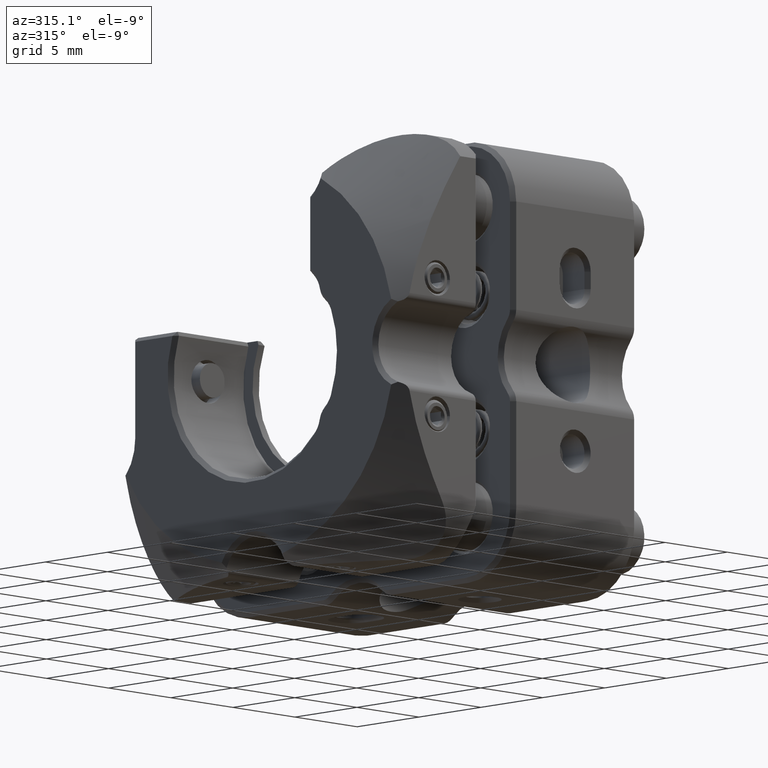
[diagram: clean part render]
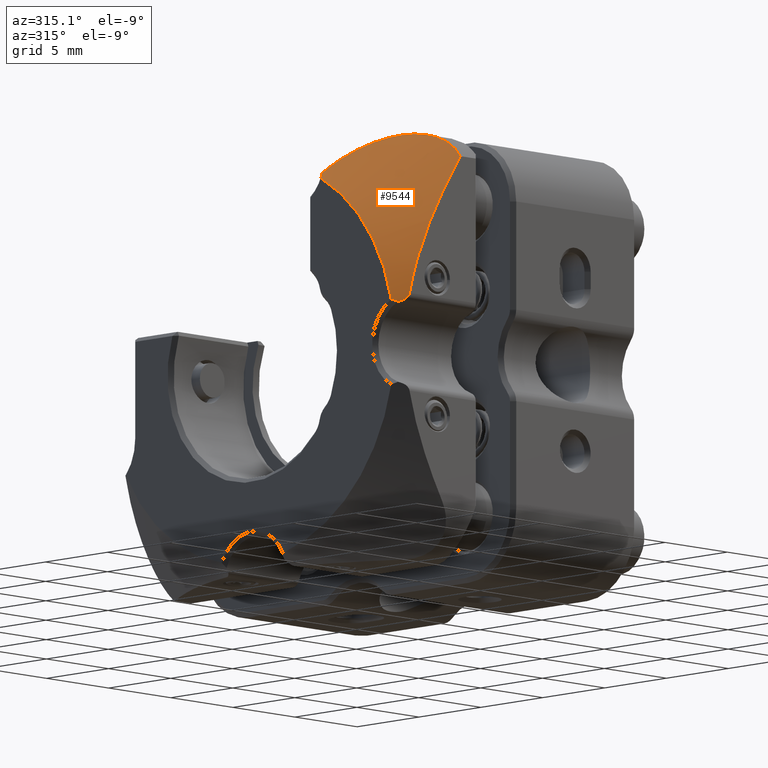
[diagram: same view with one face highlighted and labeled with its STEP entity id]
A machine part, auxiliary view. The second image highlights one B-rep face of the part: STEP entity #9544.
In plain terms, the highlighted conical surface has half-angle 45 deg.
Its self-contained STEP definition (entity closure, byte-faithful):
#365 = CARTESIAN_POINT ( 'NONE',  ( -8.402670645154575624, -3.469446951953614189E-15, -1.582072770256425168E-13 ) ) ;
#748 = ORIENTED_EDGE ( 'NONE', *, *, #24608, .T. ) ;
#2525 = CARTESIAN_POINT ( 'NONE',  ( -10.91503277499793079, -6.870144835519499615, 12.12389229928446355 ) ) ;
#2766 = CARTESIAN_POINT ( 'NONE',  ( -10.15724776907853766, -7.691349513042704977, 12.52078942497383807 ) ) ;
#2949 = CARTESIAN_POINT ( 'NONE',  ( -8.497418458155918231, -11.94000005421195887, 11.17333082782726805 ) ) ;
#3234 = CARTESIAN_POINT ( 'NONE',  ( -9.811147995964111246, -8.160223810957242918, 12.63290668111049264 ) ) ;
#3374 = CARTESIAN_POINT ( 'NONE',  ( -13.06886109312808664, -11.54734181344223032, 2.335414869067829802 ) ) ;
#3420 = CARTESIAN_POINT ( 'NONE',  ( -12.16517816744343605, -11.94000000000000306, 4.333953607213652859 ) ) ;
#3986 = EDGE_CURVE ( 'NONE', #4515, #46794, #41788, .T. ) ;
#4515 = VERTEX_POINT ( 'NONE', #36885 ) ;
#5659 = ORIENTED_EDGE ( 'NONE', *, *, #25462, .T. ) ;
#6339 = CARTESIAN_POINT ( 'NONE',  ( -12.40311577417772781, -11.94000000000000483, 3.593904326202175259 ) ) ;
#6681 = VERTEX_POINT ( 'NONE', #11978 ) ;
#7064 = B_SPLINE_CURVE_WITH_KNOTS ( 'NONE', 3,
 ( #29952, #3374, #44236, #11107 ),
 .UNSPECIFIED., .F., .F.,
 ( 4, 4 ),
 ( 2.733995490866616695E-11, 0.0001331835550975556646 ),
 .UNSPECIFIED. ) ;
#9261 = CARTESIAN_POINT ( 'NONE',  ( -13.35000000000252385, -11.23155546623884860, 2.470255413676783807 ) ) ;
#9532 = CARTESIAN_POINT ( 'NONE',  ( -11.17908811059965402, -6.626073529886143731, 11.95798162099575457 ) ) ;
#9544 = ADVANCED_FACE ( 'NONE', ( #14864 ), #40288, .T. ) ;
#9772 = CARTESIAN_POINT ( 'NONE',  ( -13.10767460866675904, -5.403075257491882333, 10.42540087276390359 ) ) ;
#10483 = CARTESIAN_POINT ( 'NONE',  ( -8.483879293265577104, -11.25296339506441790, 11.88524538833256905 ) ) ;
#11099 = B_SPLINE_CURVE_WITH_KNOTS ( 'NONE', 3,
 ( #27473, #34982, #13691, #20692, #24318, #45878 ),
 .UNSPECIFIED., .F., .F.,
 ( 4, 2, 4 ),
 ( 4.336808689942017255E-19, 0.0003769804638441096728, 0.0007539609276882189119 ),
 .UNSPECIFIED. ) ;
#11107 = CARTESIAN_POINT ( 'NONE',  ( -13.00642508924494400, -11.60666666666666735, 2.357022603954997741 ) ) ;
#11247 = DIRECTION ( 'NONE',  ( 1.000000000000000000, -0.000000000000000000, 0.000000000000000000 ) ) ;
#11373 = AXIS2_PLACEMENT_3D ( 'NONE', #32801, #47569, #29172 ) ;
#11486 = DIRECTION ( 'NONE',  ( 0.000000000000000000, 1.000000000000000000, 3.608224830031763687E-16 ) ) ;
#11564 = ORIENTED_EDGE ( 'NONE', *, *, #16381, .T. ) ;
#11978 = CARTESIAN_POINT ( 'NONE',  ( -13.34999999999884146, -5.530812164175499035, 10.08266417196445452 ) ) ;
#13392 = CARTESIAN_POINT ( 'NONE',  ( -9.098901345686694953, -9.350521429901458959, 12.67638053571431378 ) ) ;
#13549 = CARTESIAN_POINT ( 'NONE',  ( -13.00642508924494400, -11.60666666666666735, 2.357022603954997741 ) ) ;
#13691 = CARTESIAN_POINT ( 'NONE',  ( -12.67592466952843822, -11.89410921640054752, 2.596599992702082638 ) ) ;
#13871 = CARTESIAN_POINT ( 'NONE',  ( -8.932866779902733256, -9.706835081813490973, 12.61579360643520786 ) ) ;
#14527 = CARTESIAN_POINT ( 'NONE',  ( -12.57956398492702377, -11.94000000000000483, 2.828427124746028642 ) ) ;
#14864 = FACE_OUTER_BOUND ( 'NONE', #44487, .T. ) ;
#15442 = EDGE_CURVE ( 'NONE', #30161, #25270, #11099, .T. ) ;
#16381 = EDGE_CURVE ( 'NONE', #19575, #25270, #7064, .T. ) ;
#17021 = CARTESIAN_POINT ( 'NONE',  ( -8.497418458155918231, -11.94000005421195887, 11.17333082782726805 ) ) ;
#17496 = CARTESIAN_POINT ( 'NONE',  ( -12.82657743614821833, -5.516583065916431217, 10.68317928031761532 ) ) ;
#17732 = CARTESIAN_POINT ( 'NONE',  ( -12.54429180755184703, -5.658420303444831490, 10.92769976922322606 ) ) ;
#17918 = CARTESIAN_POINT ( 'NONE',  ( -10.17748806988893939, -11.94000000000000483, 8.543824536358668453 ) ) ;
#17967 = CARTESIAN_POINT ( 'NONE',  ( -8.724587789762393797, -10.24066170067738568, 12.45745877439278715 ) ) ;
#18108 = EDGE_CURVE ( 'NONE', #43762, #19575, #21492, .T. ) ;
#19575 = VERTEX_POINT ( 'NONE', #33640 ) ;
#19766 = CARTESIAN_POINT ( 'NONE',  ( -12.57956398492702377, -11.94000000000000483, 2.828427124746028642 ) ) ;
#20692 = CARTESIAN_POINT ( 'NONE',  ( -12.82959415644613443, -11.77032013285957923, 2.440036072584337301 ) ) ;
#21109 = CARTESIAN_POINT ( 'NONE',  ( -10.78367658467635337, -6.999581974744052637, 12.20138785542683024 ) ) ;
#21492 = B_SPLINE_CURVE_WITH_KNOTS ( 'NONE', 3,
 ( #9261, #34411, #23989, #27374 ),
 .UNSPECIFIED., .F., .F.,
 ( 4, 4 ),
 ( 0.000000000000000000, 1.000000000000000000 ),
 .UNSPECIFIED. ) ;
#21650 = CARTESIAN_POINT ( 'NONE',  ( -13.10767460866675904, -5.403075257491882333, 10.42540087276390359 ) ) ;
#21772 = CARTESIAN_POINT ( 'NONE',  ( -9.364215368868137546, -11.94000000000000483, 9.875416801868796668 ) ) ;
#21898 = B_SPLINE_CURVE_WITH_KNOTS ( 'NONE', 3,
 ( #14527, #6339, #3420, #35592, #47673, #46965, #17918, #21772, #25159, #2949 ),
 .UNSPECIFIED., .F., .F.,
 ( 4, 2, 2, 2, 4 ),
 ( 8.673617379884035472E-19, 0.002324423507068058489, 0.004648847014136116111, 0.006973270521204173733, 0.009297694028272230488 ),
 .UNSPECIFIED. ) ;
#23989 = CARTESIAN_POINT ( 'NONE',  ( -13.17881387847055130, -11.42764889323108335, 2.372712200294239349 ) ) ;
#24318 = CARTESIAN_POINT ( 'NONE',  ( -12.91706009393647925, -11.69174713421772260, 2.387103091730931492 ) ) ;
#24608 = EDGE_CURVE ( 'NONE', #46794, #6681, #35802, .T. ) ;
#24977 = CARTESIAN_POINT ( 'NONE',  ( -9.382183031916341065, -8.825969060422741208, 12.70340233173187627 ) ) ;
#25159 = CARTESIAN_POINT ( 'NONE',  ( -8.937823242454433270, -11.94000000000000483, 10.52878224852238631 ) ) ;
#25211 = CARTESIAN_POINT ( 'NONE',  ( -9.698300205051905820, -8.323489334354158942, 12.66135999479621610 ) ) ;
#25270 = VERTEX_POINT ( 'NONE', #13549 ) ;
#25462 = EDGE_CURVE ( 'NONE', #30161, #4515, #21898, .T. ) ;
#26904 = CARTESIAN_POINT ( 'NONE',  ( -13.26486252557321421, -5.490619848766033151, 10.20181691594882878 ) ) ;
#27374 = CARTESIAN_POINT ( 'NONE',  ( -13.09999994418219948, -11.51793025671818071, 2.323744260563292752 ) ) ;
#27473 = CARTESIAN_POINT ( 'NONE',  ( -12.57956398492702377, -11.94000000000000483, 2.828427124746028642 ) ) ;
#27893 = CARTESIAN_POINT ( 'NONE',  ( -11.31221132091368098, -6.510924265241684772, 11.86937918357350519 ) ) ;
#28130 = CARTESIAN_POINT ( 'NONE',  ( -9.189949781666786777, -9.172452105601760053, 12.69346659153493739 ) ) ;
#28374 = CARTESIAN_POINT ( 'NONE',  ( -8.666231931144158906, -10.41944353600201545, 12.38484321579276859 ) ) ;
#28614 = CARTESIAN_POINT ( 'NONE',  ( -10.40053484018271313, -7.402192709007719529, 12.41051257944025288 ) ) ;
#29172 = DIRECTION ( 'NONE',  ( 0.000000000000000000, 1.000000000000000000, 2.137179322403425946E-15 ) ) ;
#29952 = CARTESIAN_POINT ( 'NONE',  ( -13.09999994418219948, -11.51793025671818071, 2.323744260563292752 ) ) ;
#30074 = CARTESIAN_POINT ( 'NONE',  ( -13.18408738774756017, -5.447917549335694609, 10.31609572402985719 ) ) ;
#30161 = VERTEX_POINT ( 'NONE', #19766 ) ;
#31145 = CARTESIAN_POINT ( 'NONE',  ( -13.35000000000252385, -11.23155546623884860, 2.470255413676783807 ) ) ;
#31770 = CARTESIAN_POINT ( 'NONE',  ( -8.535058140494925283, -10.93066528367338641, 12.11347268372977481 ) ) ;
#32007 = CARTESIAN_POINT ( 'NONE',  ( -8.857807958358876022, -9.884922426136672158, 12.57255054312077291 ) ) ;
#32801 = CARTESIAN_POINT ( 'NONE',  ( -13.35000000000000142, -3.469446951953614189E-15, -1.582072770256425168E-13 ) ) ;
#33315 = ORIENTED_EDGE ( 'NONE', *, *, #44334, .F. ) ;
#33640 = CARTESIAN_POINT ( 'NONE',  ( -13.09999994418219948, -11.51793025671818071, 2.323744260563292752 ) ) ;
#34411 = CARTESIAN_POINT ( 'NONE',  ( -13.26214721180387812, -11.33219069387417832, 2.421684291790446864 ) ) ;
#34982 = CARTESIAN_POINT ( 'NONE',  ( -12.60831109489934221, -11.94000000000000306, 2.703714852526797774 ) ) ;
#35592 = CARTESIAN_POINT ( 'NONE',  ( -11.60210400606979420, -11.94000000000000128, 5.777992489763902562 ) ) ;
#35802 = B_SPLINE_CURVE_WITH_KNOTS ( 'NONE', 3,
 ( #42574, #30074, #26904, #46217 ),
 .UNSPECIFIED., .F., .F.,
 ( 4, 4 ),
 ( 0.000000000000000000, 1.000000000000000000 ),
 .UNSPECIFIED. ) ;
#35880 = CARTESIAN_POINT ( 'NONE',  ( -8.571776447358177009, -10.76377513963147692, 12.21296454373051787 ) ) ;
#36115 = CARTESIAN_POINT ( 'NONE',  ( -9.483958385201407992, -8.656246436083490536, 12.69650099382571540 ) ) ;
#36885 = CARTESIAN_POINT ( 'NONE',  ( -8.497418458155918231, -11.94000005421195887, 11.17333082782726805 ) ) ;
#40288 = CONICAL_SURFACE ( 'NONE', #44965, 16.44732935484544001, 0.7853981633974501664 ) ;
#41541 = ORIENTED_EDGE ( 'NONE', *, *, #15442, .F. ) ;
#41614 = ORIENTED_EDGE ( 'NONE', *, *, #18108, .T. ) ;
#41788 = B_SPLINE_CURVE_WITH_KNOTS ( 'NONE', 3,
 ( #17021, #43384, #43617, #46535, #10483, #31770, #35880, #28374, #17967, #32007, #13871, #13392, #28130, #24977, #36115, #25211, #3234, #2766, #28614, #21109, #2525, #9532, #27893, #46298, #42894, #17732, #17496, #9772 ),
 .UNSPECIFIED., .F., .F.,
 ( 4, 2, 2, 2, 2, 2, 2, 2, 2, 2, 2, 2, 2, 4 ),
 ( 8.964682040491793298E-11, 0.0005924033297749685357, 0.001184806569903116506, 0.001777209810031264801, 0.002369613050159412662, 0.002962016290287560957, 0.003554419530415709252, 0.004146822770543857548, 0.004739226010672004975, 0.005924032490928305035, 0.006516435731056454198, 0.007108838971184605095, 0.008293645451440911226, 0.009478451931697216490 ),
 .UNSPECIFIED. ) ;
#42574 = CARTESIAN_POINT ( 'NONE',  ( -13.10767460866675904, -5.403075257491882333, 10.42540087276390359 ) ) ;
#42806 = ORIENTED_EDGE ( 'NONE', *, *, #3986, .T. ) ;
#42894 = CARTESIAN_POINT ( 'NONE',  ( -11.98809318962949710, -5.992951098015496747, 11.38046890046638460 ) ) ;
#43021 = CIRCLE ( 'NONE', #11373, 11.49999999999999645 ) ;
#43384 = CARTESIAN_POINT ( 'NONE',  ( -8.475620748330873866, -11.82058580499704803, 11.33284055815847147 ) ) ;
#43617 = CARTESIAN_POINT ( 'NONE',  ( -8.465904879652375925, -11.68999220047859389, 11.48136150932254296 ) ) ;
#43762 = VERTEX_POINT ( 'NONE', #31145 ) ;
#44236 = CARTESIAN_POINT ( 'NONE',  ( -13.03766319296721399, -11.57692624693156702, 2.346507777719986976 ) ) ;
#44334 = EDGE_CURVE ( 'NONE', #43762, #6681, #43021, .T. ) ;
#44487 = EDGE_LOOP ( 'NONE', ( #33315, #41614, #11564, #41541, #5659, #42806, #748 ) ) ;
#44965 = AXIS2_PLACEMENT_3D ( 'NONE', #365, #11247, #11486 ) ;
#45878 = CARTESIAN_POINT ( 'NONE',  ( -13.00642508924494400, -11.60666666666666735, 2.357022603954997741 ) ) ;
#46217 = CARTESIAN_POINT ( 'NONE',  ( -13.34999999999884146, -5.530812164175499035, 10.08266417196445452 ) ) ;
#46298 = CARTESIAN_POINT ( 'NONE',  ( -11.71500530913827909, -6.184793091120232233, 11.58821464399330203 ) ) ;
#46535 = CARTESIAN_POINT ( 'NONE',  ( -8.469880974401036156, -11.40702928869277244, 11.75699744586597184 ) ) ;
#46794 = VERTEX_POINT ( 'NONE', #21650 ) ;
#46965 = CARTESIAN_POINT ( 'NONE',  ( -10.56497616493082781, -11.94000000000000483, 7.864438765247779628 ) ) ;
#47569 = DIRECTION ( 'NONE',  ( -1.000000000000000000, 0.000000000000000000, -0.000000000000000000 ) ) ;
#47673 = CARTESIAN_POINT ( 'NONE',  ( -11.27692474869186334, -11.94000000000000483, 6.481964432292989464 ) ) ;